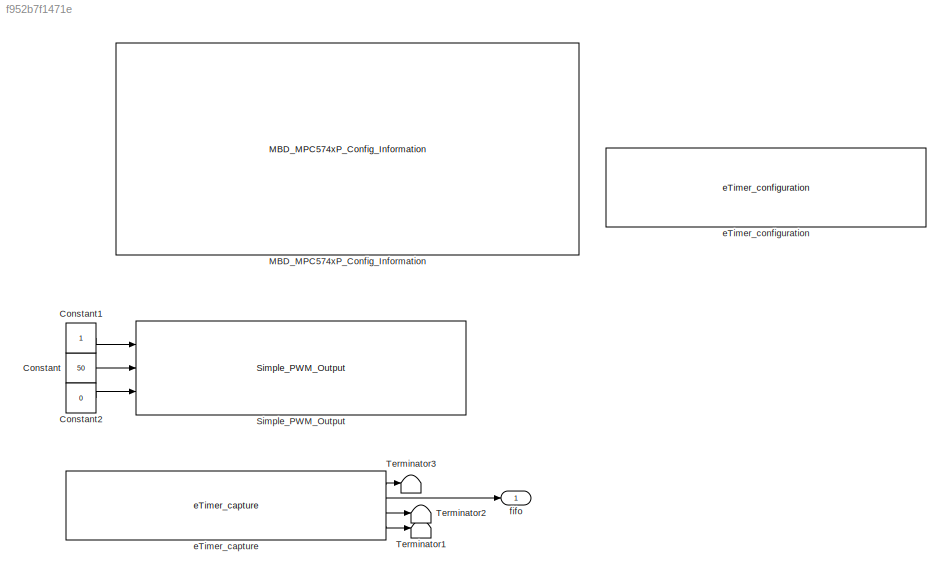
MODEL slx_f952b7f1471e
KIND model
CONFIG AbsTol = auto
CONFIG EnableMultiTasking = off
CONFIG FixedStep = 1e-4
CONFIG InitFcn = mbd_pnt_consistency_checks(bdroot(gcs));
CONFIG MaxStep = auto
CONFIG MinStep = auto
CONFIG RelTol = 1e-3
CONFIG SampleTimeConstraint = Unconstrained
CONFIG Solver = FixedStepDiscrete
CONFIG SolverName = FixedStepDiscrete
CONFIG StartTime = 0.0
CONFIG StopTime = 10.0
BLOCK [Constant] Constant
  OutDataTypeStr = uint32
  Value = 50
BLOCK [Constant] Constant1
  OutDataTypeStr = uint32
BLOCK [Constant] Constant2
  OutDataTypeStr = uint32
  Value = 0
BLOCK [Reference] MBD_MPC574xP_Config_Information  REF=mbd_pnt_ec_toolbox/MPC574xP/MBD_MPC574xP_Config_Information
  Ports = []
  SourceBlock = mbd_pnt_ec_toolbox/MPC574xP/MBD_MPC574xP_Config_Information
  SourceProductName = Model Based Design Toolbox for MPC574xP
  SourceType = MBDTBX_EC_PNT
BLOCK [Reference] Simple_PWM_Output  REF=mbd_pnt_ec_toolbox/MPC574xP/Motor Control Blocks/Simple_PWM_Output
  Ports = [3]
  SourceBlock = mbd_pnt_ec_toolbox/MPC574xP/Motor Control Blocks/Simple_PWM_Output
  SourceProductName = Model Based Design Toolbox for MPC574xP
  SourceType = Simple_PWM_pnt_output
BLOCK [Terminator] Terminator1
BLOCK [Terminator] Terminator2
BLOCK [Terminator] Terminator3
BLOCK [Reference] eTimer_capture  REF=mbd_pnt_ec_toolbox/MPC574xP/Motor Control Blocks/eTimer_capture
  Ports = [0, 4]
  SourceBlock = mbd_pnt_ec_toolbox/MPC574xP/Motor Control Blocks/eTimer_capture
  SourceProductName = Model Based Design Toolbox for MPC574xP
  SourceType = eTimer_pnt_capture
BLOCK [Reference] eTimer_configuration  REF=mbd_pnt_ec_toolbox/MPC574xP/Motor Control Blocks/eTimer_configuration
  Ports = []
  SourceBlock = mbd_pnt_ec_toolbox/MPC574xP/Motor Control Blocks/eTimer_configuration
  SourceProductName = Model Based Design Toolbox for MPC574xP
  SourceType = eTimer_pnt_config
BLOCK [Outport] fifo
  IconDisplay = Port number
LINE Constant1:1 -> Simple_PWM_Output:1
LINE Constant2:1 -> Simple_PWM_Output:3
LINE Constant:1 -> Simple_PWM_Output:2
LINE eTimer_capture:1 -> Terminator3:1
LINE eTimer_capture:2 -> fifo:1
LINE eTimer_capture:3 -> Terminator2:1
LINE eTimer_capture:4 -> Terminator1:1
